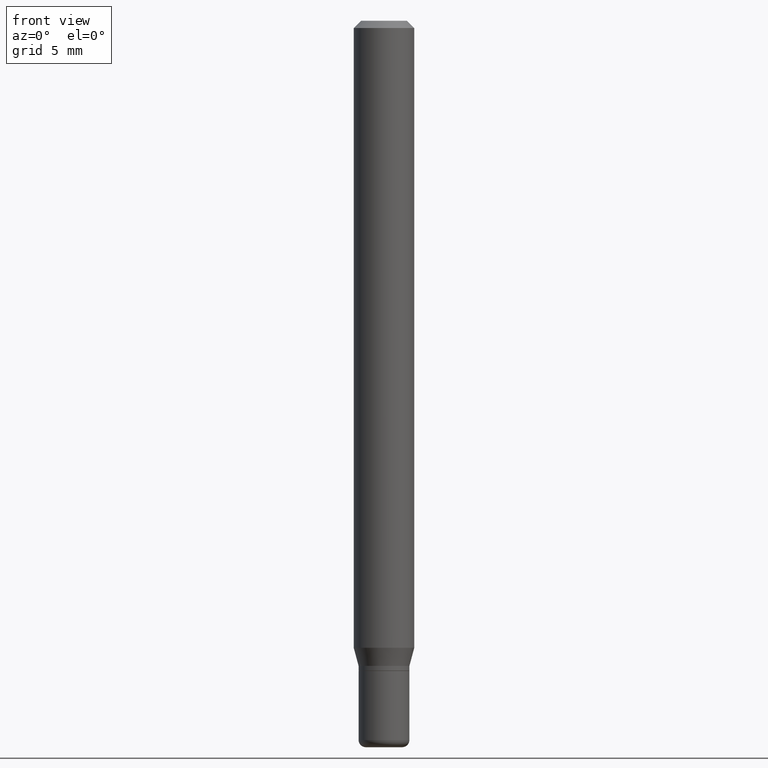
[diagram: clean part render]
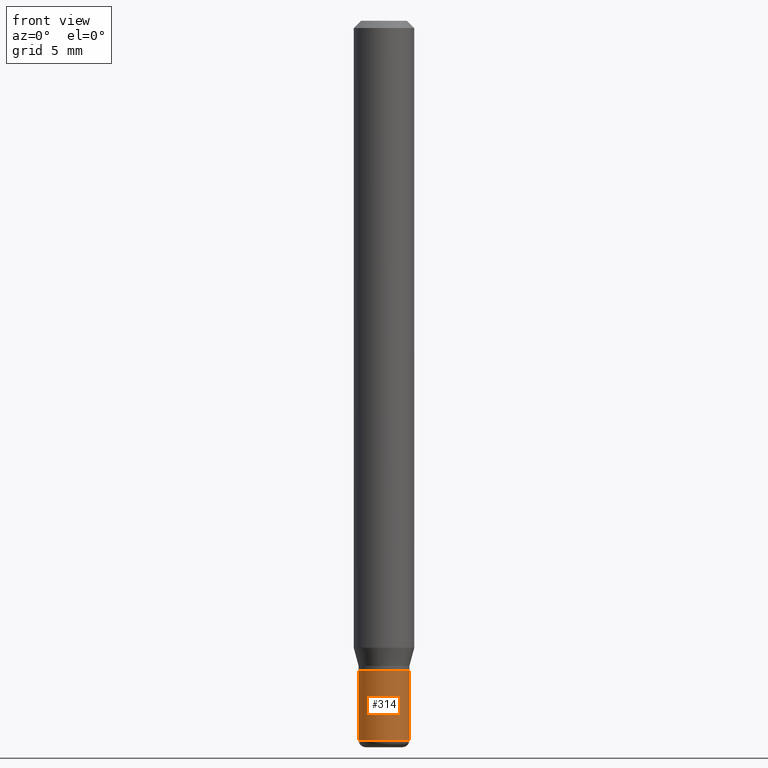
[diagram: same view with one face highlighted and labeled with its STEP entity id]
A machine part, front view. The second image highlights one B-rep face of the part: STEP entity #314.
In plain terms, the highlighted cylindrical surface (edge-blend (fillet) strip) has radius 1.3335 mm, axis along (-0, 0, 1).
Its self-contained STEP definition (entity closure, byte-faithful):
#3 = DIRECTION ( 'NONE',  ( -2.445468806185136877E-29, 3.491481338843145188E-15, 1.000000000000000000 ) ) ;
#11 = CARTESIAN_POINT ( 'NONE',  ( 0.05249999999999999806, -5.053919237975452413E-15, -1.342500000000000249 ) ) ;
#12 = VECTOR ( 'NONE', #3, 39.37007874015748143 ) ;
#19 = AXIS2_PLACEMENT_3D ( 'NONE', #292, #216, #211 ) ;
#25 = CARTESIAN_POINT ( 'NONE',  ( 0.05249999999999997724, -5.551455328760600652E-15, -1.485000000000000098 ) ) ;
#30 = CARTESIAN_POINT ( 'NONE',  ( -0.05249999999999999806, -4.563046806515444838E-15, -1.342500000000000249 ) ) ;
#40 = LINE ( 'NONE', #361, #12 ) ;
#42 = DIRECTION ( 'NONE',  ( -2.445468806185136877E-29, 3.491481338843145188E-15, 1.000000000000000000 ) ) ;
#72 = VERTEX_POINT ( 'NONE', #11 ) ;
#102 = ORIENTED_EDGE ( 'NONE', *, *, #317, .T. ) ;
#106 = VERTEX_POINT ( 'NONE', #443 ) ;
#119 = DIRECTION ( 'NONE',  ( 1.000000000000000000, -6.982962677686267499E-15, 4.876176775795935793E-29 ) ) ;
#120 = ORIENTED_EDGE ( 'NONE', *, *, #201, .F. ) ;
#152 = AXIS2_PLACEMENT_3D ( 'NONE', #481, #283, #410 ) ;
#201 = EDGE_CURVE ( 'NONE', #463, #72, #491, .T. ) ;
#205 = FACE_OUTER_BOUND ( 'NONE', #227, .T. ) ;
#211 = DIRECTION ( 'NONE',  ( 1.000000000000000000, -6.982962677686268288E-15, 0.000000000000000000 ) ) ;
#216 = DIRECTION ( 'NONE',  ( -2.445468806185136597E-29, 3.491481338843145583E-15, 1.000000000000000000 ) ) ;
#218 = AXIS2_PLACEMENT_3D ( 'NONE', #359, #324, #119 ) ;
#227 = EDGE_LOOP ( 'NONE', ( #233, #102, #428, #120 ) ) ;
#233 = ORIENTED_EDGE ( 'NONE', *, *, #487, .F. ) ;
#283 = DIRECTION ( 'NONE',  ( -2.445468806185136597E-29, 3.491481338843145583E-15, 1.000000000000000000 ) ) ;
#292 = CARTESIAN_POINT ( 'NONE',  ( 3.283041872303546419E-29, -4.687313697396923253E-15, -1.342500000000000249 ) ) ;
#297 = EDGE_CURVE ( 'NONE', #402, #72, #479, .T. ) ;
#314 = ADVANCED_FACE ( 'NONE', ( #205 ), #407, .T. ) ;
#317 = EDGE_CURVE ( 'NONE', #106, #402, #413, .T. ) ;
#321 = CARTESIAN_POINT ( 'NONE',  ( 0.05249999999999998418, -3.666055405785289136E-16, 2.559992807292865661E-30 ) ) ;
#324 = DIRECTION ( 'NONE',  ( -2.445468806185136597E-29, 3.491481338843145583E-15, 1.000000000000000000 ) ) ;
#359 = CARTESIAN_POINT ( 'NONE',  ( 0.000000000000000000, 0.000000000000000000, 0.000000000000000000 ) ) ;
#361 = CARTESIAN_POINT ( 'NONE',  ( -0.05249999999999998418, 3.730349362740524852E-16, -2.582440922383824961E-30 ) ) ;
#397 = VECTOR ( 'NONE', #42, 39.37007874015748143 ) ;
#402 = VERTEX_POINT ( 'NONE', #25 ) ;
#407 = CYLINDRICAL_SURFACE ( 'NONE', #218, 0.05249999999999998418 ) ;
#410 = DIRECTION ( 'NONE',  ( 1.000000000000000000, -6.982962677686270655E-15, 0.000000000000000000 ) ) ;
#413 = CIRCLE ( 'NONE', #152, 0.05249999999999997724 ) ;
#428 = ORIENTED_EDGE ( 'NONE', *, *, #297, .T. ) ;
#443 = CARTESIAN_POINT ( 'NONE',  ( -0.05249999999999997724, -4.563046806515444838E-15, -1.485000000000000098 ) ) ;
#463 = VERTEX_POINT ( 'NONE', #30 ) ;
#479 = LINE ( 'NONE', #321, #397 ) ;
#481 = CARTESIAN_POINT ( 'NONE',  ( 3.631521177184928138E-29, -5.184849788182071492E-15, -1.485000000000000098 ) ) ;
#487 = EDGE_CURVE ( 'NONE', #106, #463, #40, .T. ) ;
#491 = CIRCLE ( 'NONE', #19, 0.05249999999999999806 ) ;